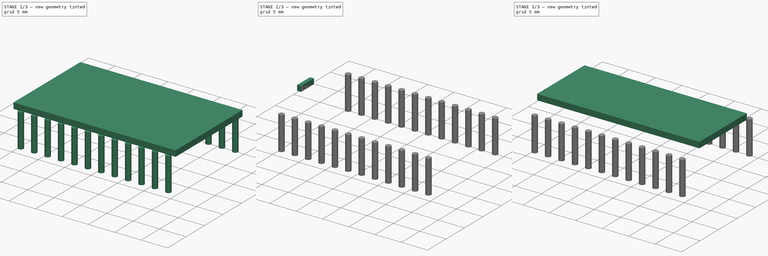
[diagram: build sequence overview — one tinted view per stage of 3, left to right]
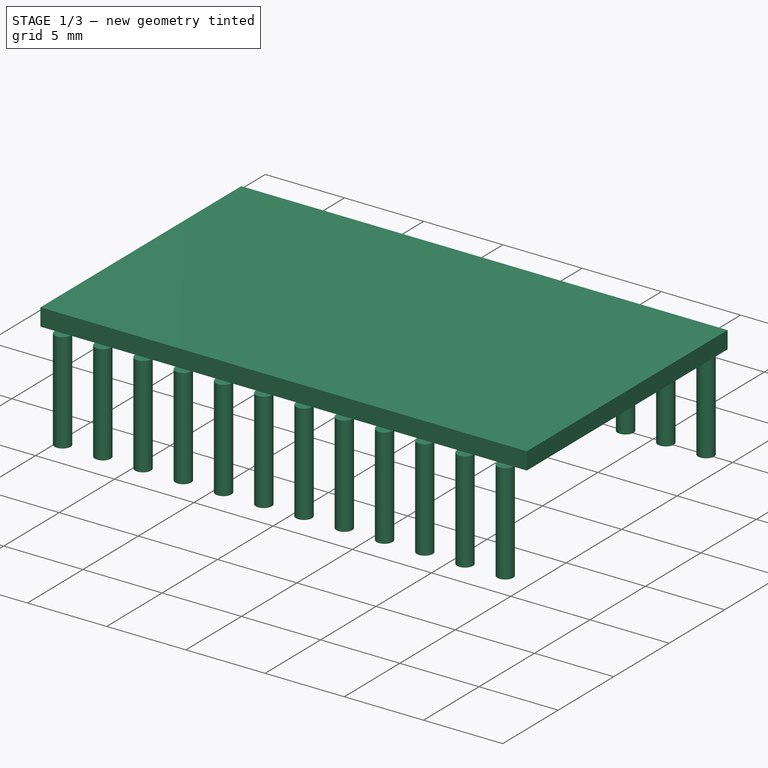
[diagram: stage 1 of 3 — iso view after this stage's code; geometry added in this stage tinted green]
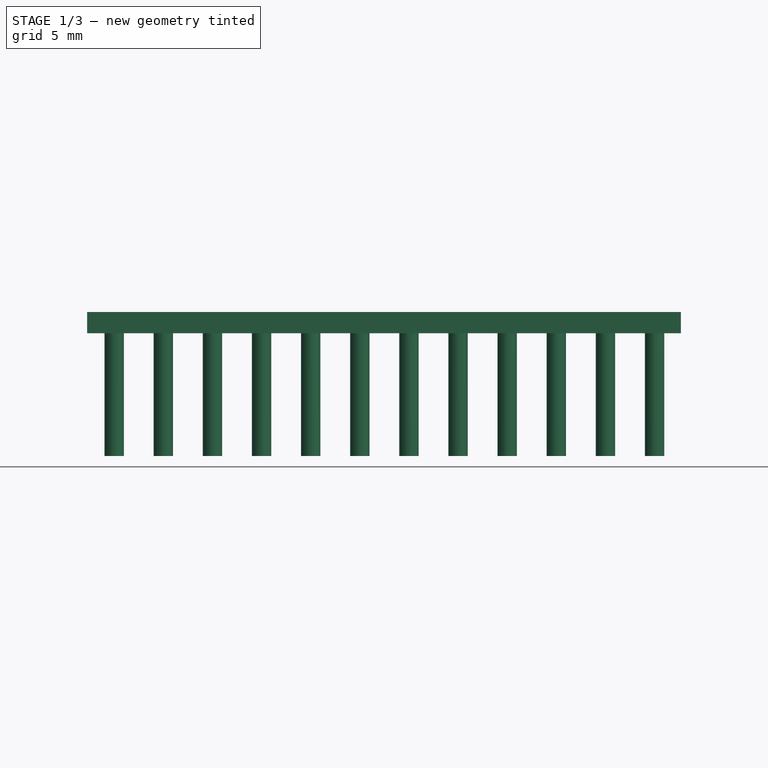
[diagram: stage 1 of 3 — front view after this stage's code; geometry added in this stage tinted green]
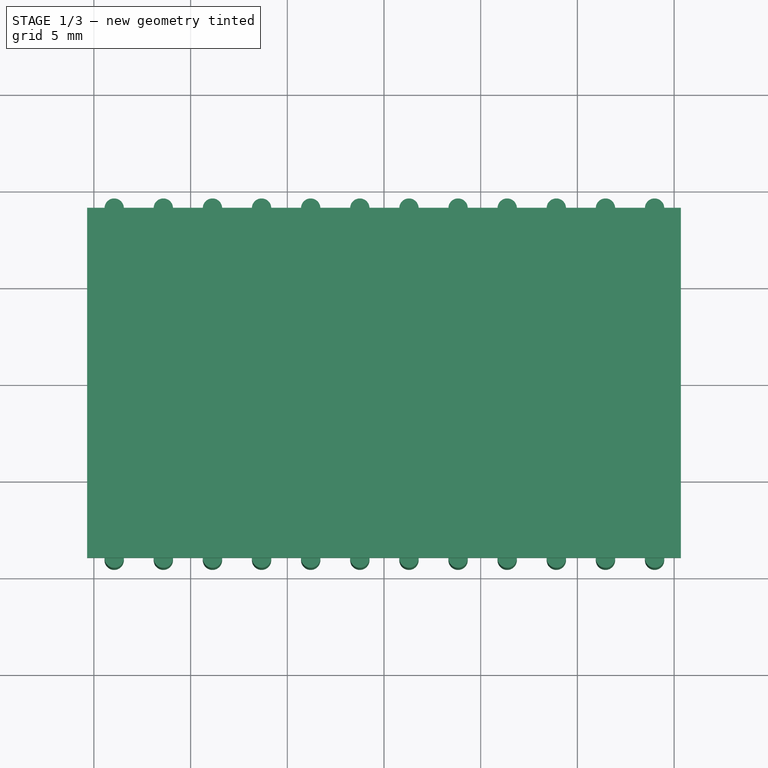
[diagram: stage 1 of 3 — top view after this stage's code; geometry added in this stage tinted green]
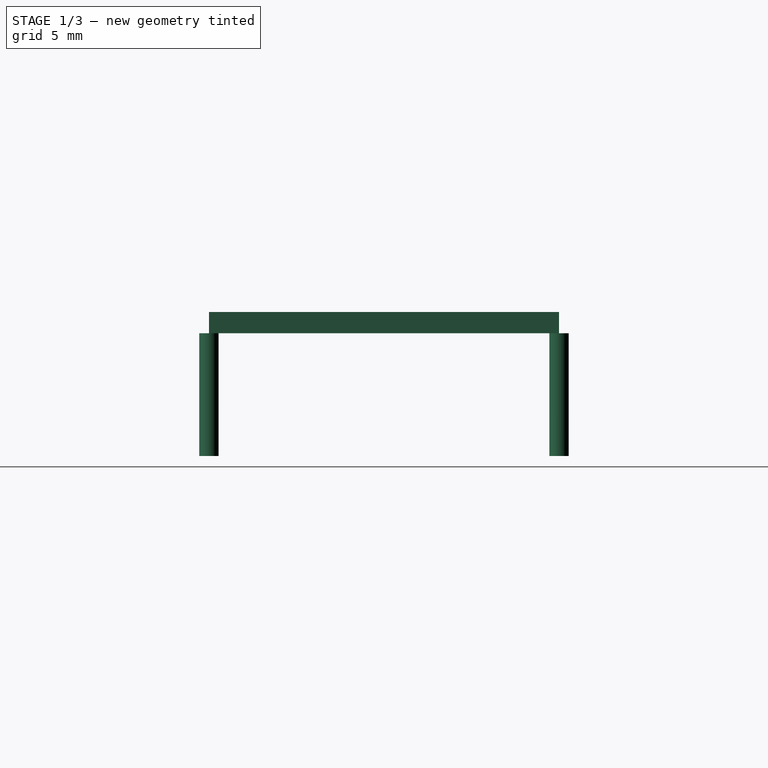
[diagram: stage 1 of 3 — right view after this stage's code; geometry added in this stage tinted green]
FCSTD DOCUMENT  (FreeCAD 0.18R16146 (Git))
Label: display_character_glass_lcd
License: All rights reserved
LicenseURL: http://en.wikipedia.org/wiki/All_rights_reserved
objects: Sketcher::SketchObject×4, Part::Extrusion×4, Part::Fillet×1, PartDesign::Body×1
note: 10 computed .brp shape members not serialized (recipe doc carries the construction recipe); baked Part::Feature solids carry a one-line shape summary decoded from their .brp

FEATURE [Sketcher::SketchObject] Sketch
  MapMode = 5
  Support = -> [XY_Plane]
  sketch-geometry (4):
    g0: LineSegment StartX=-15.35 StartY=-9.05 StartZ=0 EndX=15.35 EndY=-9.05 EndZ=0
    g1: LineSegment StartX=15.35 StartY=-9.05 StartZ=0 EndX=15.35 EndY=9.05 EndZ=0
    g2: LineSegment StartX=15.35 StartY=9.05 StartZ=0 EndX=-15.35 EndY=9.05 EndZ=0
    g3: LineSegment StartX=-15.35 StartY=9.05 StartZ=0 EndX=-15.35 EndY=-9.05 EndZ=0
  constraints (12):
    c: Coincident(g0,g1)
    c: Coincident(g1,g2)
    c: Coincident(g2,g3)
    c: Coincident(g3,g0)
    c: Horizontal(g0)
    c: Horizontal(g2)
    c: Vertical(g1)
    c: Vertical(g3)
    c: DistanceX(g2,g2) = 30.7
    c: DistanceY(g1,g1) = 18.1
    c: Distance(g-1,g3) = 15.35
    c: Distance(g-1,g0) = 9.05
FEATURE [Part::Extrusion] Extrude
  Base = -> Sketch
  Dir = (0,0,1)
  DirMode = 2
  FaceMakerClass = Part::FaceMakerBullseye
  LengthFwd = 1.1
  LengthRev = 0
  Solid = true
  Symmetric = false
FEATURE [Sketcher::SketchObject] Sketch003
  MapMode = 5
  Support = -> [XY_Plane]
  sketch-geometry (47):
    g0: Circle CenterX=-13.95 CenterY=9.05 CenterZ=0 NormalX=0 NormalY=0 NormalZ=1 AngleXU=0 Radius=0.5
    g1: Circle CenterX=-11.41 CenterY=9.05 CenterZ=0 NormalX=0 NormalY=0 NormalZ=1 AngleXU=0 Radius=0.5
    g2: LineSegment [constr] StartX=-13.95 StartY=9.05 StartZ=0 EndX=-11.41 EndY=9.05 EndZ=0
    g3: Circle CenterX=-8.87 CenterY=9.05 CenterZ=0 NormalX=0 NormalY=0 NormalZ=1 AngleXU=0 Radius=0.5
    g4: LineSegment [constr] StartX=-11.41 StartY=9.05 StartZ=0 EndX=-8.87 EndY=9.05 EndZ=0
    g5: Circle CenterX=-6.33 CenterY=9.05 CenterZ=0 NormalX=0 NormalY=0 NormalZ=1 AngleXU=0 Radius=0.5
    g6: LineSegment [constr] StartX=-8.87 StartY=9.05 StartZ=0 EndX=-6.33 EndY=9.05 EndZ=0
    g7: Circle CenterX=-3.79 CenterY=9.05 CenterZ=0 NormalX=0 NormalY=0 NormalZ=1 AngleXU=0 Radius=0.5
    g8: LineSegment [constr] StartX=-6.33 StartY=9.05 StartZ=0 EndX=-3.79 EndY=9.05 EndZ=0
    g9: Circle CenterX=-1.25 CenterY=9.05 CenterZ=0 NormalX=0 NormalY=0 NormalZ=1 AngleXU=0 Radius=0.5
    g10: LineSegment [constr] StartX=-3.79 StartY=9.05 StartZ=0 EndX=-1.25 EndY=9.05 EndZ=0
    g11: Circle CenterX=1.29 CenterY=9.05 CenterZ=0 NormalX=0 NormalY=0 NormalZ=1 AngleXU=0 Radius=0.5
    g12: LineSegment [constr] StartX=-1.25 StartY=9.05 StartZ=0 EndX=1.29 EndY=9.05 EndZ=0
    g13: Circle CenterX=3.83 CenterY=9.05 CenterZ=0 NormalX=0 NormalY=0 NormalZ=1 AngleXU=0 Radius=0.5
    g14: LineSegment [constr] StartX=1.29 StartY=9.05 StartZ=0 EndX=3.83 EndY=9.05 EndZ=0
    g15: Circle CenterX=6.37 CenterY=9.05 CenterZ=0 NormalX=0 NormalY=0 NormalZ=1 AngleXU=0 Radius=0.5
    g16: LineSegment [constr] StartX=3.83 StartY=9.05 StartZ=0 EndX=6.37 EndY=9.05 EndZ=0
    g17: Circle CenterX=8.91 CenterY=9.05 CenterZ=0 NormalX=0 NormalY=0 NormalZ=1 AngleXU=0 Radius=0.5
    g18: LineSegment [constr] StartX=6.37 StartY=9.05 StartZ=0 EndX=8.91 EndY=9.05 EndZ=0
    g19: Circle CenterX=11.45 CenterY=9.05 CenterZ=0 NormalX=0 NormalY=0 NormalZ=1 AngleXU=0 Radius=0.5
    g20: LineSegment [constr] StartX=8.91 StartY=9.05 StartZ=0 EndX=11.45 EndY=9.05 EndZ=0
    g21: Circle CenterX=13.99 CenterY=9.05 CenterZ=0 NormalX=0 NormalY=0 NormalZ=1 AngleXU=0 Radius=0.5
    g22: LineSegment [constr] StartX=11.45 StartY=9.05 StartZ=0 EndX=13.99 EndY=9.05 EndZ=0
    g23: Circle CenterX=-13.95 CenterY=-9.05 CenterZ=0 NormalX=0 NormalY=0 NormalZ=1 AngleXU=0 Radius=0.5
    g24: LineSegment [constr] StartX=-13.95 StartY=9.05 StartZ=0 EndX=-13.95 EndY=-9.05 EndZ=0
    g25: Circle CenterX=-11.41 CenterY=-9.05 CenterZ=0 NormalX=0 NormalY=0 NormalZ=1 AngleXU=0 Radius=0.5
    g26: LineSegment [constr] StartX=-13.95 StartY=-9.05 StartZ=0 EndX=-11.41 EndY=-9.05 EndZ=0
    g27: Circle CenterX=-8.87 CenterY=-9.05 CenterZ=0 NormalX=0 NormalY=0 NormalZ=1 AngleXU=0 Radius=0.5
    g28: LineSegment [constr] StartX=-11.41 StartY=-9.05 StartZ=0 EndX=-8.87 EndY=-9.05 EndZ=0
    g29: Circle CenterX=-6.33 CenterY=-9.05 CenterZ=0 NormalX=0 NormalY=0 NormalZ=1 AngleXU=0 Radius=0.5
    g30: LineSegment [constr] StartX=-8.87 StartY=-9.05 StartZ=0 EndX=-6.33 EndY=-9.05 EndZ=0
    g31: Circle CenterX=-3.79 CenterY=-9.05 CenterZ=0 NormalX=0 NormalY=0 NormalZ=1 AngleXU=0 Radius=0.5
    g32: LineSegment [constr] StartX=-6.33 StartY=-9.05 StartZ=0 EndX=-3.79 EndY=-9.05 EndZ=0
    g33: Circle CenterX=-1.25 CenterY=-9.05 CenterZ=0 NormalX=0 NormalY=0 NormalZ=1 AngleXU=0 Radius=0.5
    g34: LineSegment [constr] StartX=-3.79 StartY=-9.05 StartZ=0 EndX=-1.25 EndY=-9.05 EndZ=0
    g35: Circle CenterX=1.29 CenterY=-9.05 CenterZ=0 NormalX=0 NormalY=0 NormalZ=1 AngleXU=0 Radius=0.5
    g36: LineSegment [constr] StartX=-1.25 StartY=-9.05 StartZ=0 EndX=1.29 EndY=-9.05 EndZ=0
    g37: Circle CenterX=3.83 CenterY=-9.05 CenterZ=0 NormalX=0 NormalY=0 NormalZ=1 AngleXU=0 Radius=0.5
    g38: LineSegment [constr] StartX=1.29 StartY=-9.05 StartZ=0 EndX=3.83 EndY=-9.05 EndZ=0
    g39: Circle CenterX=6.37 CenterY=-9.05 CenterZ=0 NormalX=0 NormalY=0 NormalZ=1 AngleXU=0 Radius=0.5
    g40: LineSegment [constr] StartX=3.83 StartY=-9.05 StartZ=0 EndX=6.37 EndY=-9.05 EndZ=0
    g41: Circle CenterX=8.91 CenterY=-9.05 CenterZ=0 NormalX=0 NormalY=0 NormalZ=1 AngleXU=0 Radius=0.5
    g42: LineSegment [constr] StartX=6.37 StartY=-9.05 StartZ=0 EndX=8.91 EndY=-9.05 EndZ=0
    g43: Circle CenterX=11.45 CenterY=-9.05 CenterZ=0 NormalX=0 NormalY=0 NormalZ=1 AngleXU=0 Radius=0.5
    g44: LineSegment [constr] StartX=8.91 StartY=-9.05 StartZ=0 EndX=11.45 EndY=-9.05 EndZ=0
    g45: Circle CenterX=13.99 CenterY=-9.05 CenterZ=0 NormalX=0 NormalY=0 NormalZ=1 AngleXU=0 Radius=0.5
    g46: LineSegment [constr] StartX=11.45 StartY=-9.05 StartZ=0 EndX=13.99 EndY=-9.05 EndZ=0
  constraints (118):
    c: Radius(g0) = 0.5
    c: DistanceX(g0,g-1) = 13.95
    c: DistanceY(g-1,g0) = 9.05
    c: Radius(g1) = 0.5
    c: Coincident(g0,g2)
    c: Coincident(g1,g2)
    c: Distance(g2) = 2.54
    c: Angle(g2) = 0
    c: Radius(g3) = 0.5
    c: Coincident(g1,g4)
    c: Coincident(g3,g4)
    c: Equal(g2,g4)
    c: Parallel(g4,g2)
    c: Radius(g5) = 0.5
    c: Coincident(g3,g6)
    c: Coincident(g5,g6)
    c: Equal(g2,g6)
    c: Parallel(g6,g2)
    c: Radius(g7) = 0.5
    c: Coincident(g5,g8)
    c: Coincident(g7,g8)
    c: Equal(g2,g8)
    c: Parallel(g8,g2)
    c: Radius(g9) = 0.5
    c: Coincident(g7,g10)
    c: Coincident(g9,g10)
    c: Equal(g2,g10)
    c: Parallel(g10,g2)
    c: Radius(g11) = 0.5
    c: Coincident(g9,g12)
    c: Coincident(g11,g12)
    c: Equal(g2,g12)
    c: Parallel(g12,g2)
    c: Radius(g13) = 0.5
    c: Coincident(g11,g14)
    c: Coincident(g13,g14)
    c: Equal(g2,g14)
    c: Parallel(g14,g2)
    c: Radius(g15) = 0.5
    c: Coincident(g13,g16)
    c: Coincident(g15,g16)
    c: Equal(g2,g16)
    c: Parallel(g16,g2)
    c: Radius(g17) = 0.5
    c: Coincident(g15,g18)
    c: Coincident(g17,g18)
    c: Equal(g2,g18)
    c: Parallel(g18,g2)
    c: Radius(g19) = 0.5
    c: Coincident(g17,g20)
    c: Coincident(g19,g20)
    c: Equal(g2,g20)
    c: Parallel(g20,g2)
    c: Radius(g21) = 0.5
    c: Coincident(g19,g22)
    c: Coincident(g21,g22)
    c: Equal(g2,g22)
    c: Parallel(g22,g2)
    c: Radius(g23) = 0.5
    c: Coincident(g0,g24)
    c: Coincident(g23,g24)
    c: Distance(g24) = 18.1
    c: Perpendicular(g24,g2)
    c: Radius(g25) = 0.5
    c: Coincident(g23,g26)
    c: Coincident(g25,g26)
    c: Equal(g2,g26)
    c: Parallel(g26,g2)
    c: Radius(g27) = 0.5
    c: Coincident(g25,g28)
    c: Coincident(g27,g28)
    c: Equal(g2,g28)
    c: Parallel(g28,g2)
    c: Radius(g29) = 0.5
    c: Coincident(g27,g30)
    c: Coincident(g29,g30)
    c: Equal(g2,g30)
    c: Parallel(g30,g2)
    c: Radius(g31) = 0.5
    c: Coincident(g29,g32)
    c: Coincident(g31,g32)
    c: Equal(g2,g32)
    c: Parallel(g32,g2)
    c: Radius(g33) = 0.5
    c: Coincident(g31,g34)
    c: Coincident(g33,g34)
    c: Equal(g2,g34)
    c: Parallel(g34,g2)
    c: Radius(g35) = 0.5
    c: Coincident(g33,g36)
    c: Coincident(g35,g36)
    c: Equal(g2,g36)
    c: Parallel(g36,g2)
    c: Radius(g37) = 0.5
    c: Coincident(g35,g38)
    c: Coincident(g37,g38)
    c: Equal(g2,g38)
    c: Parallel(g38,g2)
    c: Radius(g39) = 0.5
    c: Coincident(g37,g40)
    c: Coincident(g39,g40)
    c: Equal(g2,g40)
    c: Parallel(g40,g2)
    c: Radius(g41) = 0.5
    c: Coincident(g39,g42)
    c: Coincident(g41,g42)
    c: Equal(g2,g42)
    c: Parallel(g42,g2)
    c: Radius(g43) = 0.5
    c: Coincident(g41,g44)
    c: Coincident(g43,g44)
    c: Equal(g2,g44)
    c: Parallel(g44,g2)
    c: Radius(g45) = 0.5
    c: Coincident(g43,g46)
    c: Coincident(g45,g46)
    c: Equal(g2,g46)
    c: Parallel(g46,g2)
FEATURE [PartDesign::Body] Body
  Group = -> [Sketch,Sketch001,Sketch002,Sketch003]
  Origin = -> Origin
FEATURE [Part::Extrusion] Extrude005
  Base = -> Sketch003
  Dir = (0,0,1)
  DirMode = 2
  FaceMakerClass = Part::FaceMakerBullseye
  LengthFwd = -6.35
  LengthRev = 0
  Solid = true
  Symmetric = false
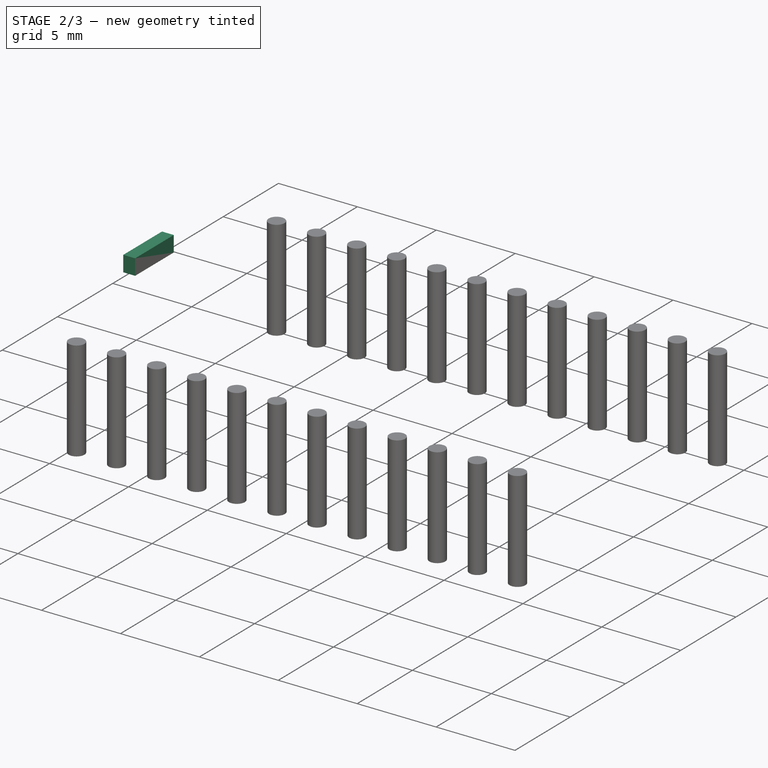
[diagram: stage 2 of 3 — iso view after this stage's code; geometry added in this stage tinted green]
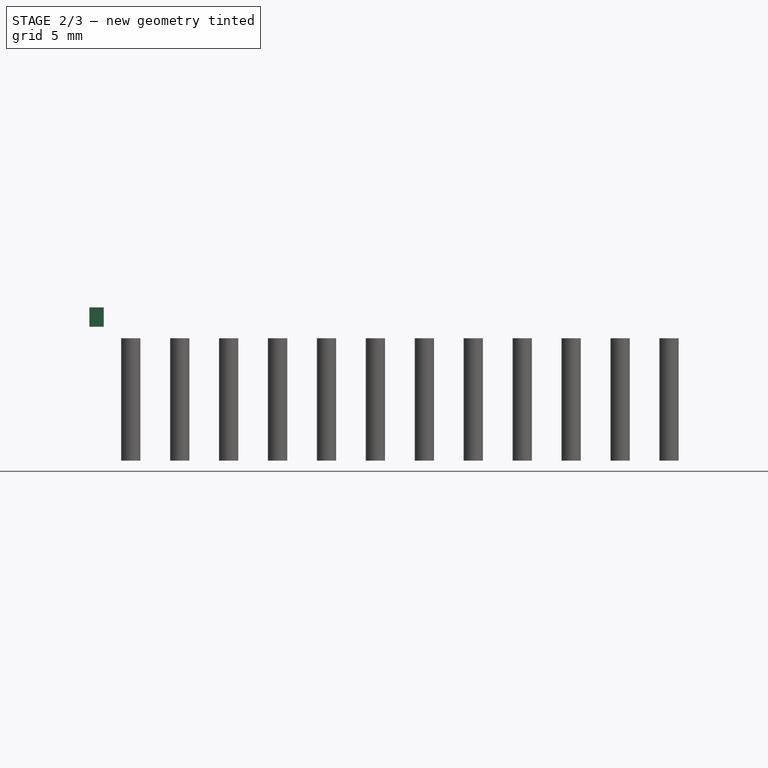
[diagram: stage 2 of 3 — front view after this stage's code; geometry added in this stage tinted green]
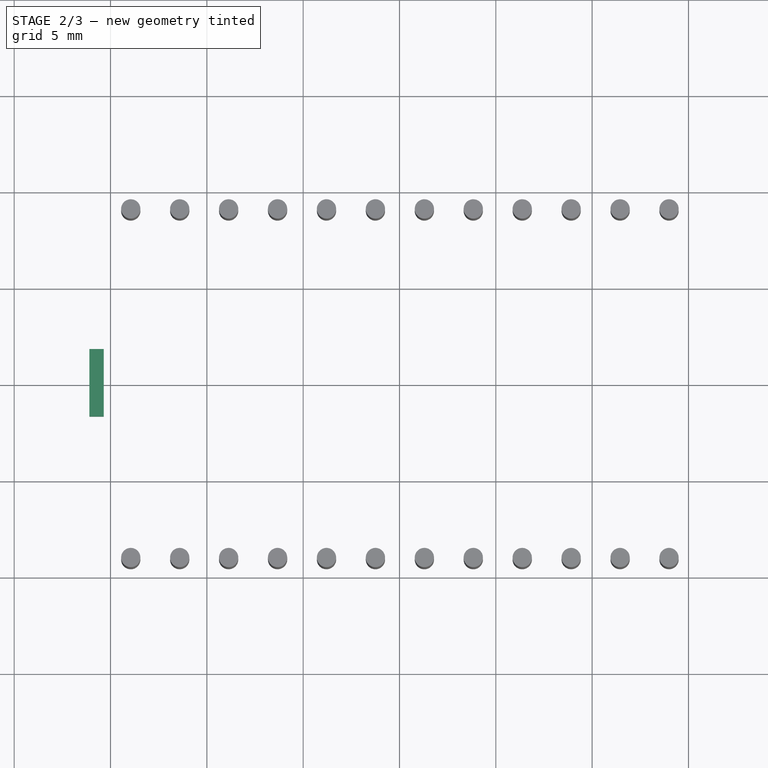
[diagram: stage 2 of 3 — top view after this stage's code; geometry added in this stage tinted green]
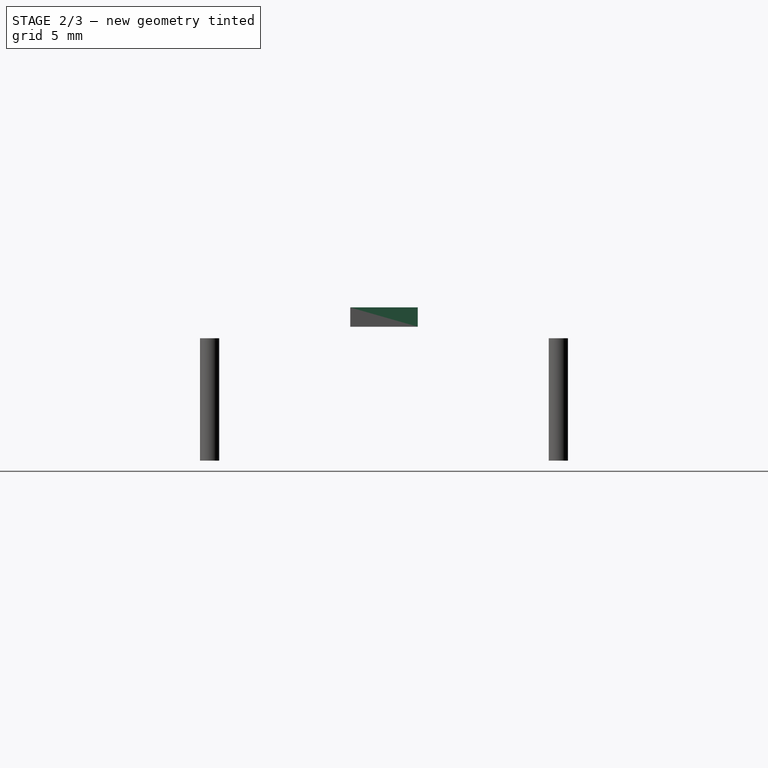
[diagram: stage 2 of 3 — right view after this stage's code; geometry added in this stage tinted green]
FEATURE [Sketcher::SketchObject] Sketch002
  MapMode = 5
  Placement = pos=(-15.35,0,0) rot=(0.57735,-0.57735,-0.57735;2.0944rad)
  Support = -> [Extrude]
  sketch-geometry (4):
    g0: LineSegment StartX=-1.75 StartY=0.6 StartZ=0 EndX=1.75 EndY=0.6 EndZ=0
    g1: LineSegment StartX=1.75 StartY=0.6 StartZ=0 EndX=1.75 EndY=1.6 EndZ=0
    g2: LineSegment StartX=1.75 StartY=1.6 StartZ=0 EndX=-1.75 EndY=1.6 EndZ=0
    g3: LineSegment StartX=-1.75 StartY=1.6 StartZ=0 EndX=-1.75 EndY=0.6 EndZ=0
  constraints (12):
    c: Coincident(g0,g1)
    c: Coincident(g1,g2)
    c: Coincident(g2,g3)
    c: Coincident(g3,g0)
    c: Horizontal(g0)
    c: Horizontal(g2)
    c: Vertical(g1)
    c: Vertical(g3)
    c: DistanceX(g2,g2) = 3.5
    c: DistanceY(g1,g1) = 1
    c: Distance(g-1,g1) = 1.75
    c: Distance(g-1,g2) = 1.6
FEATURE [Part::Extrusion] Extrude004
  Base = -> Sketch002
  Dir = (-1,0,0)
  DirMode = 2
  FaceMakerClass = Part::FaceMakerBullseye
  LengthFwd = 0.75
  LengthRev = 0
  Solid = true
  Symmetric = false
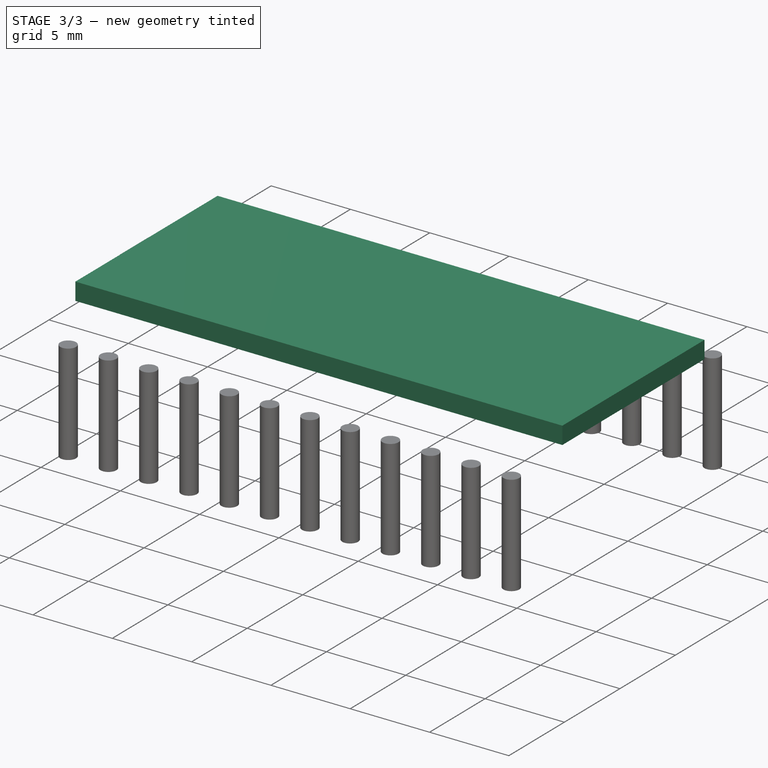
[diagram: stage 3 of 3 — iso view after this stage's code; geometry added in this stage tinted green]
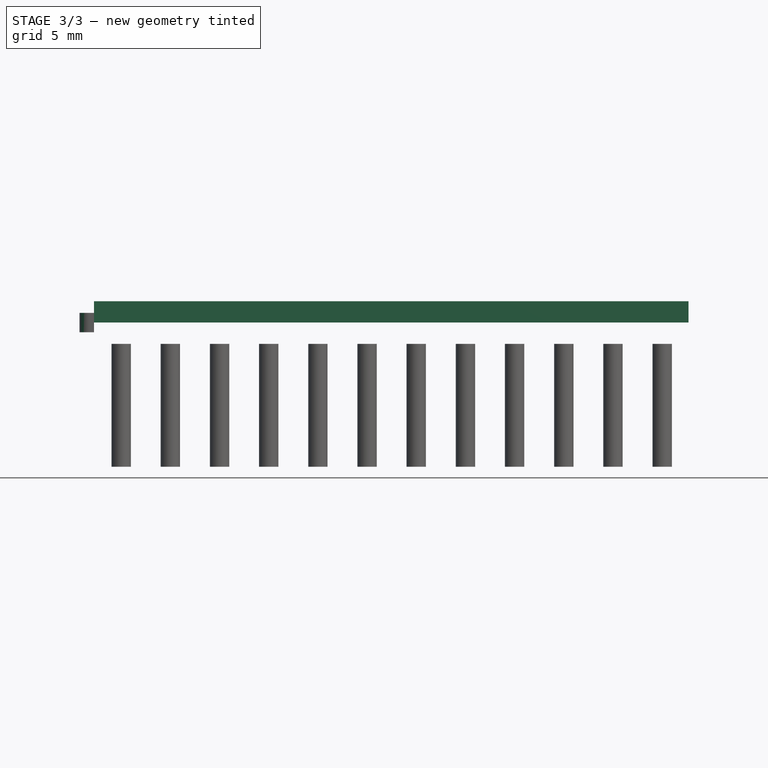
[diagram: stage 3 of 3 — front view after this stage's code; geometry added in this stage tinted green]
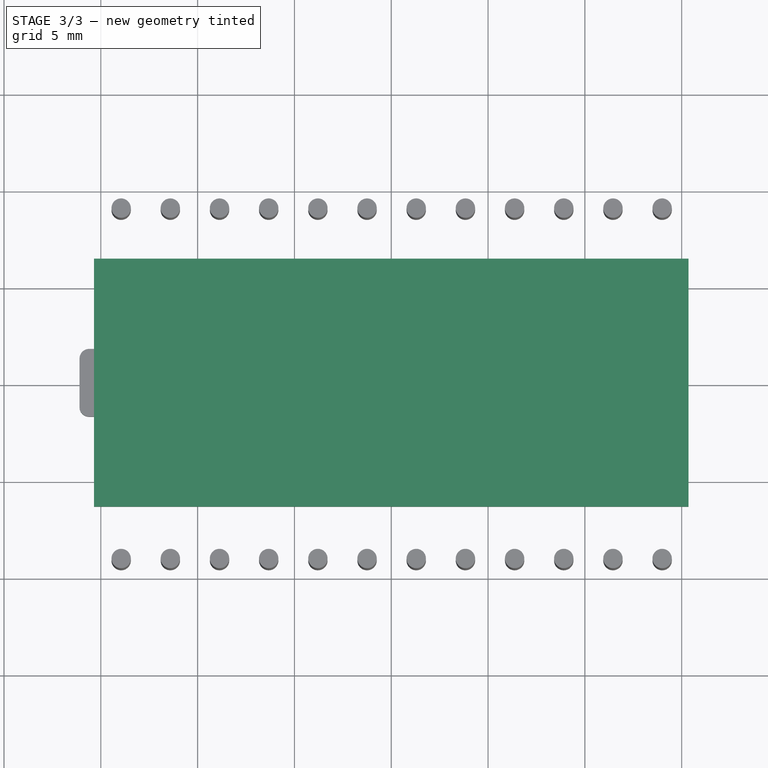
[diagram: stage 3 of 3 — top view after this stage's code; geometry added in this stage tinted green]
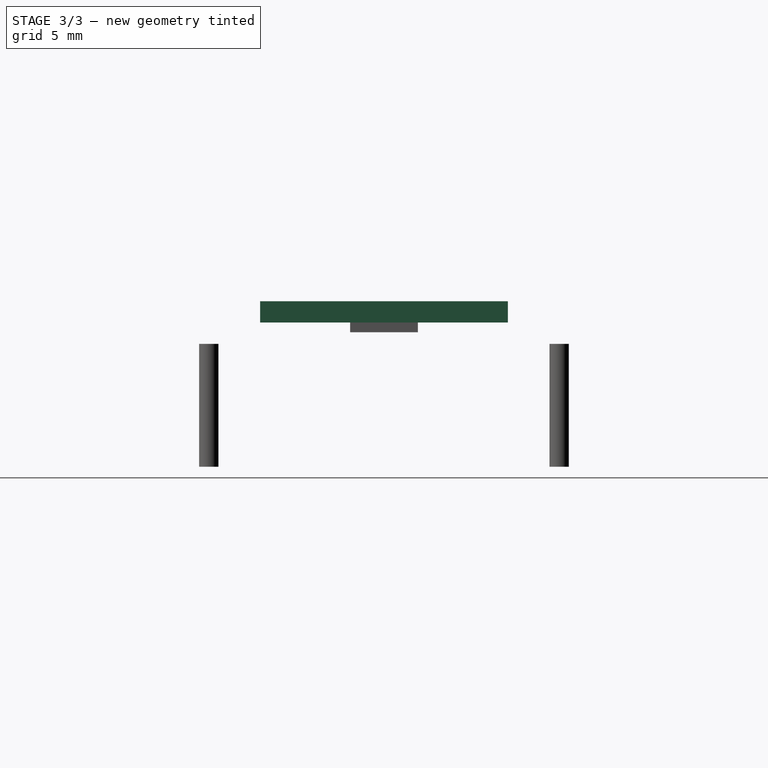
[diagram: stage 3 of 3 — right view after this stage's code; geometry added in this stage tinted green]
FEATURE [Sketcher::SketchObject] Sketch001
  MapMode = 5
  Placement = pos=(0,0,1.1) rot=(0,0,1;0rad)
  Support = -> [Extrude]
  sketch-geometry (4):
    g0: LineSegment StartX=-15.35 StartY=-6.4 StartZ=0 EndX=15.35 EndY=-6.4 EndZ=0
    g1: LineSegment StartX=15.35 StartY=-6.4 StartZ=0 EndX=15.35 EndY=6.4 EndZ=0
    g2: LineSegment StartX=15.35 StartY=6.4 StartZ=0 EndX=-15.35 EndY=6.4 EndZ=0
    g3: LineSegment StartX=-15.35 StartY=6.4 StartZ=0 EndX=-15.35 EndY=-6.4 EndZ=0
  constraints (12):
    c: Coincident(g0,g1)
    c: Coincident(g1,g2)
    c: Coincident(g2,g3)
    c: Coincident(g3,g0)
    c: Horizontal(g0)
    c: Horizontal(g2)
    c: Vertical(g1)
    c: Vertical(g3)
    c: DistanceX(g2,g2) = 30.7
    c: DistanceY(g1,g1) = 12.8
    c: Distance(g-1,g0) = 6.4
    c: Distance(g-1,g3) = 15.35
FEATURE [Part::Extrusion] Extrude002
  Base = -> Sketch001
  Dir = (0,0,1)
  DirMode = 2
  FaceMakerClass = Part::FaceMakerBullseye
  LengthFwd = 1.1
  LengthRev = 0
  Solid = true
  Symmetric = false
FEATURE [Part::Fillet] Fillet
  Base = -> Extrude004
  Edges = 2 edges r=0.5: [Edge7,Edge12]
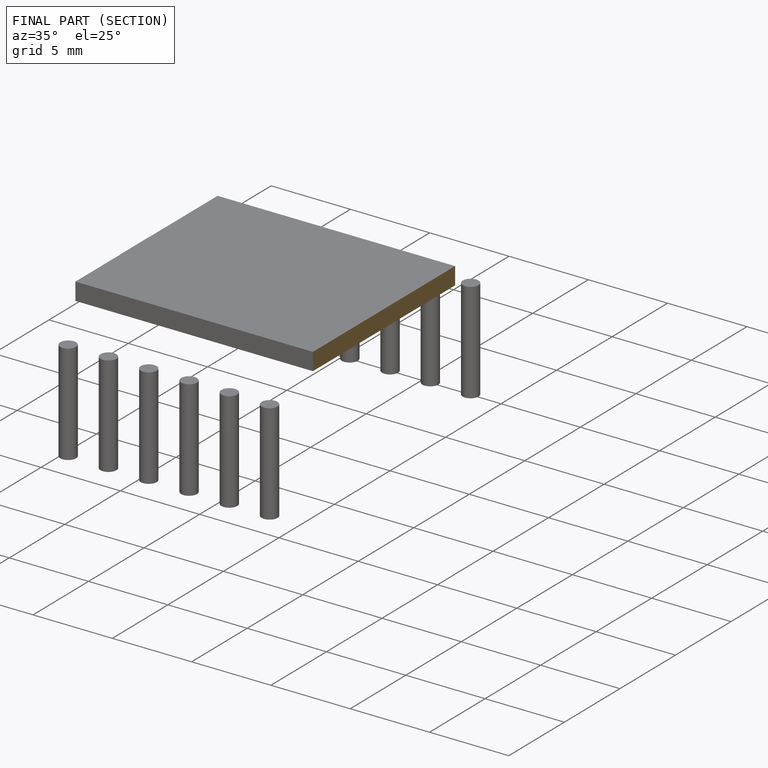
[diagram: finished part — half-section view (interior)]
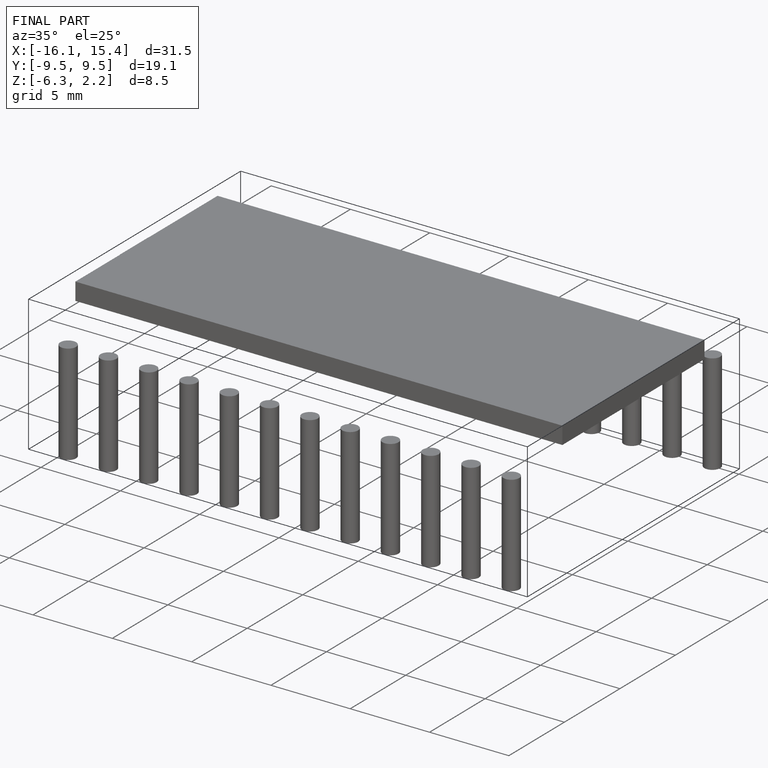
[diagram: finished part — iso view with bounding-box wireframe]
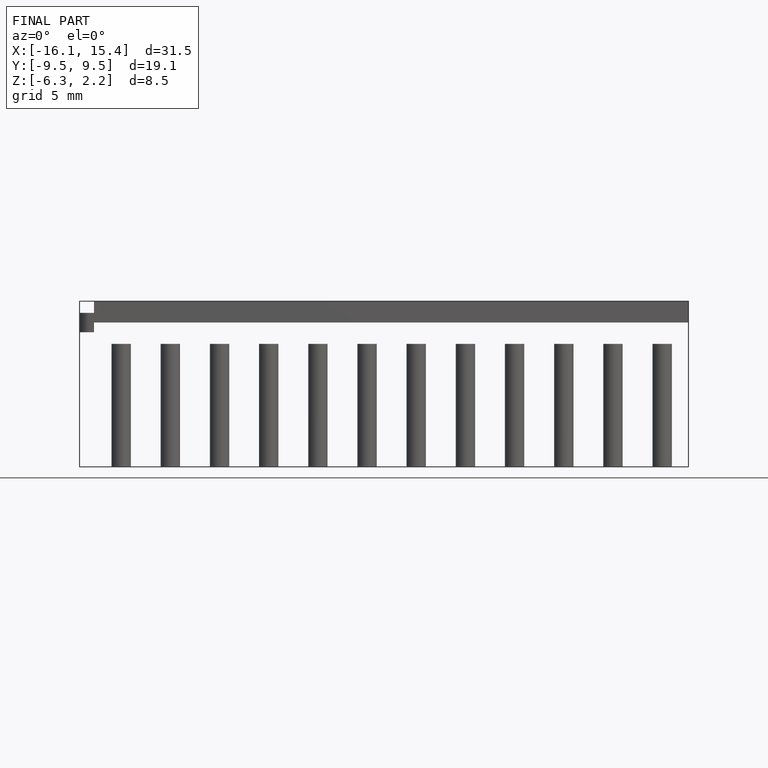
[diagram: finished part — front view with bounding-box wireframe]
